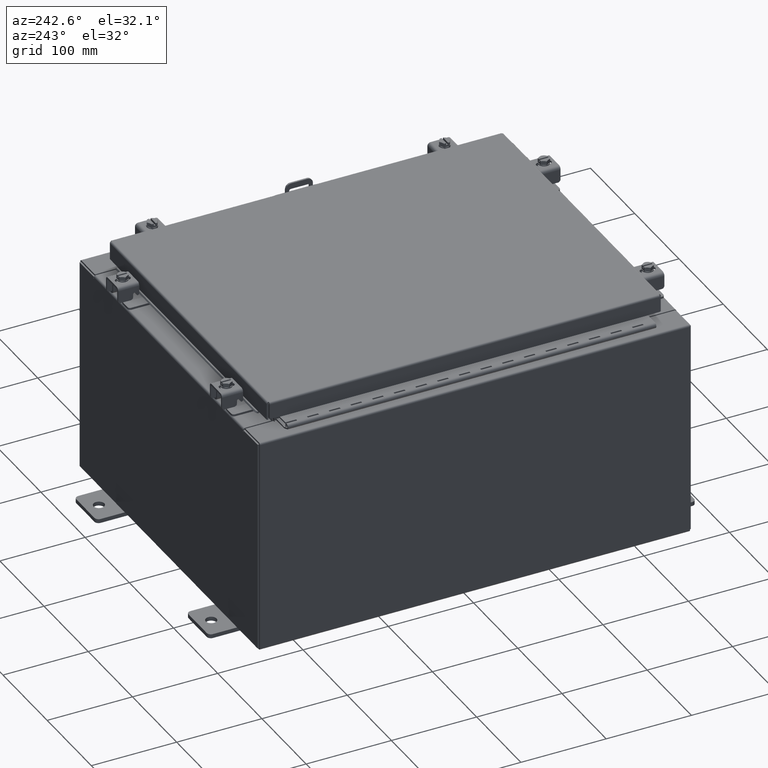
[diagram: clean part render]
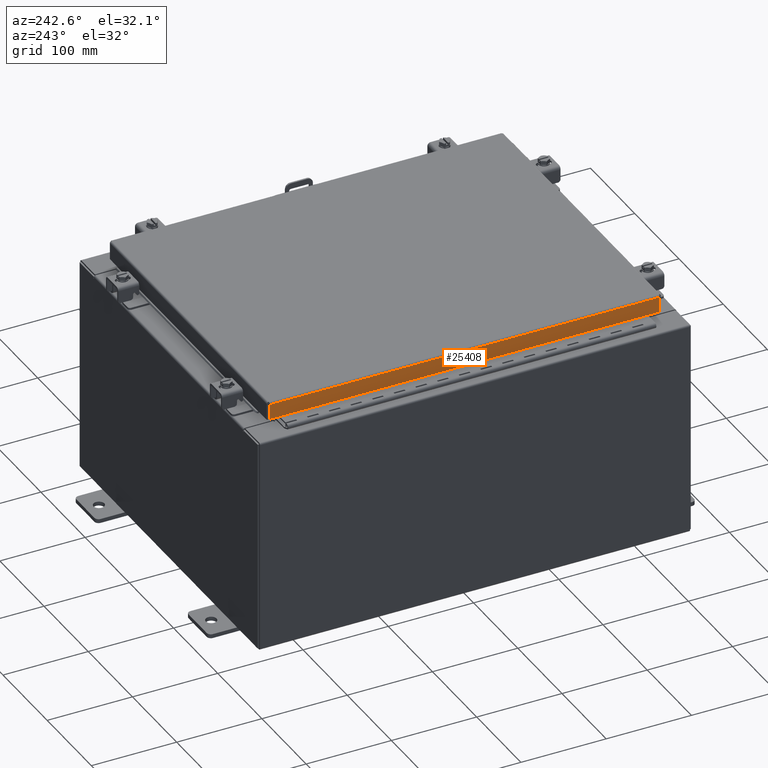
[diagram: same view with one face highlighted and labeled with its STEP entity id]
A machine part, auxiliary view. The second image highlights one B-rep face of the part: STEP entity #25408.
In plain terms, the highlighted planar face has unit normal (1, 0, -0).
Its self-contained STEP definition (entity closure, byte-faithful):
#241 = EDGE_LOOP ( 'NONE', ( #28306, #21133, #5060, #9527 ) ) ;
#1428 = VECTOR ( 'NONE', #21785, 39.37007874015748100 ) ;
#1599 = LINE ( 'NONE', #22777, #7709 ) ;
#3357 = CARTESIAN_POINT ( 'NONE',  ( -7.077999999999998500, -2.580508138144074000E-030, 2.173633230008283200E-014 ) ) ;
#3579 = EDGE_CURVE ( 'NONE', #12463, #7847, #18017, .T. ) ;
#5060 = ORIENTED_EDGE ( 'NONE', *, *, #12796, .F. ) ;
#5956 = CARTESIAN_POINT ( 'NONE',  ( -7.077999999999998500, 9.005157864376270600, 8.461901357369529800E-014 ) ) ;
#6789 = AXIS2_PLACEMENT_3D ( 'NONE', #3357, #21605, #8027 ) ;
#7124 = EDGE_CURVE ( 'NONE', #23581, #25337, #13533, .T. ) ;
#7709 = VECTOR ( 'NONE', #18111, 39.37007874015748100 ) ;
#7847 = VERTEX_POINT ( 'NONE', #13120 ) ;
#8027 = DIRECTION ( 'NONE',  ( -3.034122441942816500E-015, 0.0000000000000000000, -1.000000000000000000 ) ) ;
#9527 = ORIENTED_EDGE ( 'NONE', *, *, #3579, .F. ) ;
#12463 = VERTEX_POINT ( 'NONE', #23806 ) ;
#12796 = EDGE_CURVE ( 'NONE', #7847, #25337, #1599, .T. ) ;
#13120 = CARTESIAN_POINT ( 'NONE',  ( -7.078000000000000300, -9.005157864376261800, -0.7949999999999996000 ) ) ;
#13533 = LINE ( 'NONE', #5956, #1428 ) ;
#14447 = CARTESIAN_POINT ( 'NONE',  ( -7.077999999999998500, -9.093999999999999400, -0.08770000000000004200 ) ) ;
#18017 = LINE ( 'NONE', #22458, #24077 ) ;
#18111 = DIRECTION ( 'NONE',  ( 4.379057701015054300E-047, 1.000000000000000000, 1.201604571657912400E-016 ) ) ;
#18972 = DIRECTION ( 'NONE',  ( 3.645815397208356400E-031, -1.000000000000000000, -1.074717912135910000E-045 ) ) ;
#19059 = CARTESIAN_POINT ( 'NONE',  ( -7.078000000000000300, 9.005157864376274200, -0.7949999999999974900 ) ) ;
#19351 = PLANE ( 'NONE',  #6789 ) ;
#20890 = VECTOR ( 'NONE', #18972, 39.37007874015748100 ) ;
#21133 = ORIENTED_EDGE ( 'NONE', *, *, #7124, .T. ) ;
#21597 = CARTESIAN_POINT ( 'NONE',  ( -7.077999999999998500, 9.005157864376270600, -0.08770000000000004200 ) ) ;
#21605 = DIRECTION ( 'NONE',  ( 1.000000000000000000, 3.645815397208356400E-031, -3.034122441942816500E-015 ) ) ;
#21785 = DIRECTION ( 'NONE',  ( -3.034122441942816500E-015, 6.982962677686267500E-015, -1.000000000000000000 ) ) ;
#22054 = DIRECTION ( 'NONE',  ( -3.034122441942816500E-015, 6.982962677686267500E-015, -1.000000000000000000 ) ) ;
#22458 = CARTESIAN_POINT ( 'NONE',  ( -7.077999999999998500, -9.005157864376267100, -0.07469999999999976700 ) ) ;
#22473 = FACE_OUTER_BOUND ( 'NONE', #241, .T. ) ;
#22777 = CARTESIAN_POINT ( 'NONE',  ( -7.078000000000000300, -9.093999999999999400, -0.7949999999999997100 ) ) ;
#23581 = VERTEX_POINT ( 'NONE', #21597 ) ;
#23806 = CARTESIAN_POINT ( 'NONE',  ( -7.077999999999998500, -9.005157864376265300, -0.08770000000000007000 ) ) ;
#24077 = VECTOR ( 'NONE', #22054, 39.37007874015748100 ) ;
#25337 = VERTEX_POINT ( 'NONE', #19059 ) ;
#25408 = ADVANCED_FACE ( 'NONE', ( #22473 ), #19351, .F. ) ;
#26213 = LINE ( 'NONE', #14447, #20890 ) ;
#28306 = ORIENTED_EDGE ( 'NONE', *, *, #29138, .F. ) ;
#29138 = EDGE_CURVE ( 'NONE', #23581, #12463, #26213, .T. ) ;